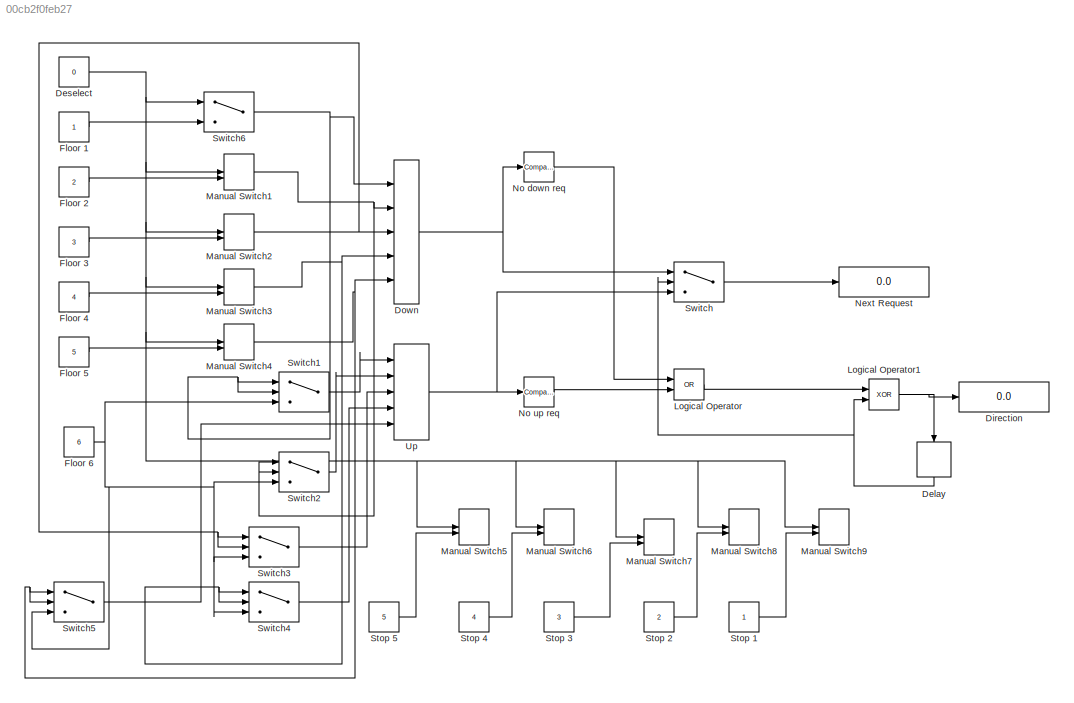
MODEL slx_00cb2f0feb27
KIND model
BLOCK [Delay] Delay
  DelayLength = 1
  InitialCondition = 0
  InputPortMap = u0
  Ports = [1, 1]
  SampleTime = 1
BLOCK [Constant] Deselect
  Value = 0
BLOCK [Display] Direction
  Decimation = 1
  Ports = [1]
BLOCK [MinMax] Down
  Function = max
  InputSameDT = off
  Inputs = 5
  Ports = [5, 1]
  SaturateOnIntegerOverflow = off
BLOCK [Constant] Floor 1
BLOCK [Constant] Floor 2
  Value = 2
BLOCK [Constant] Floor 3
  Value = 3
BLOCK [Constant] Floor 4
  Value = 4
BLOCK [Constant] Floor 5
  Value = 5
BLOCK [Constant] Floor 6
  Value = 6
BLOCK [Logic] Logical Operator
  AllPortsSameDT = off
  Operator = OR
  OutDataTypeStr = boolean
  Ports = [2, 1]
BLOCK [Logic] Logical Operator1
  AllPortsSameDT = off
  Operator = XOR
  OutDataTypeStr = boolean
  Ports = [2, 1]
BLOCK [ManualSwitch] Manual Switch1
  CurrentSetting = 0
BLOCK [ManualSwitch] Manual Switch2
BLOCK [ManualSwitch] Manual Switch3
BLOCK [ManualSwitch] Manual Switch4
BLOCK [ManualSwitch] Manual Switch5
BLOCK [ManualSwitch] Manual Switch6
BLOCK [ManualSwitch] Manual Switch7
BLOCK [ManualSwitch] Manual Switch8
BLOCK [ManualSwitch] Manual Switch9
BLOCK [Display] Next Request
  Decimation = 1
  Ports = [1]
BLOCK [Reference] No down req  REF=simulink/Logic and Bit
Operations/Compare
To Constant
  OutDataTypeStr = boolean
  Ports = [1, 1]
  SourceBlock = simulink/Logic and Bit\nOperations/Compare\nTo Constant
  SourceType = Compare To Constant
  ZeroCross = on
  const = 0
  relop = ==
BLOCK [Reference] No up req  REF=simulink/Logic and Bit
Operations/Compare
To Constant
  OutDataTypeStr = boolean
  Ports = [1, 1]
  SourceBlock = simulink/Logic and Bit\nOperations/Compare\nTo Constant
  SourceType = Compare To Constant
  ZeroCross = on
  const = 6
  relop = ==
BLOCK [Constant] Stop 1
BLOCK [Constant] Stop 2
  Value = 2
BLOCK [Constant] Stop 3
  Value = 3
BLOCK [Constant] Stop 4
  Value = 4
BLOCK [Constant] Stop 5
  Value = 5
BLOCK [Switch] Switch
  Criteria = u2 ~= 0
  InputSameDT = off
  SaturateOnIntegerOverflow = off
BLOCK [Switch] Switch1
  Criteria = u2 ~= 0
  InputSameDT = off
  SaturateOnIntegerOverflow = off
  Threshold = 5
BLOCK [Switch] Switch2
  Criteria = u2 ~= 0
  InputSameDT = off
  SaturateOnIntegerOverflow = off
  Threshold = 5
BLOCK [Switch] Switch3
  Criteria = u2 ~= 0
  InputSameDT = off
  SaturateOnIntegerOverflow = off
  Threshold = 5
BLOCK [Switch] Switch4
  Criteria = u2 ~= 0
  InputSameDT = off
  SaturateOnIntegerOverflow = off
  Threshold = 5
BLOCK [Switch] Switch5
  Criteria = u2 ~= 0
  InputSameDT = off
  SaturateOnIntegerOverflow = off
  Threshold = 5
BLOCK [Switch] Switch6
  Criteria = u2 > Threshold
  InputSameDT = off
  SaturateOnIntegerOverflow = off
BLOCK [MinMax] Up
  InputSameDT = off
  Inputs = 5
  Ports = [5, 1]
  SaturateOnIntegerOverflow = off
NET Delay:1 -> Logical Operator1:2, Switch:2
NET Deselect:1 -> Manual Switch1:1, Manual Switch2:1, Manual Switch3:1, Manual Switch4:1, Manual Switch5:1, Manual Switch6:1, Manual Switch7:1, Manual Switch8:1, Manual Switch9:1, Switch6:1
NET Down:1 -> No down req:1, Switch:1
LINE Floor 1:1 -> Switch6:3
LINE Floor 2:1 -> Manual Switch1:2
LINE Floor 3:1 -> Manual Switch2:2
LINE Floor 4:1 -> Manual Switch3:2
LINE Floor 5:1 -> Manual Switch4:2
NET Floor 6:1 -> Switch1:3, Switch2:3, Switch3:3, Switch4:3, Switch5:3
NET Logical Operator1:1 -> Delay:1, Direction:1
LINE Logical Operator:1 -> Logical Operator1:1
NET Manual Switch1:1 -> Down:2, Switch2:1, Switch2:2
NET Manual Switch2:1 -> Down:3, Switch3:1, Switch3:2
NET Manual Switch3:1 -> Down:4, Switch4:1, Switch4:2
NET Manual Switch4:1 -> Down:5, Switch5:1, Switch5:2
LINE No down req:1 -> Logical Operator:1
LINE No up req:1 -> Logical Operator:2
LINE Stop 1:1 -> Manual Switch9:2
LINE Stop 2:1 -> Manual Switch8:2
LINE Stop 3:1 -> Manual Switch7:2
LINE Stop 4:1 -> Manual Switch6:2
LINE Stop 5:1 -> Manual Switch5:2
LINE Switch1:1 -> Up:1
LINE Switch2:1 -> Up:2
LINE Switch3:1 -> Up:3
LINE Switch4:1 -> Up:4
LINE Switch5:1 -> Up:5
NET Switch6:1 -> Down:1, Switch1:1, Switch1:2
LINE Switch:1 -> Next Request:1
NET Up:1 -> No up req:1, Switch:3
note: NET lines group one-source signal fan-out (src -> all destinations, sorted); 1:1 wires keep LINE
